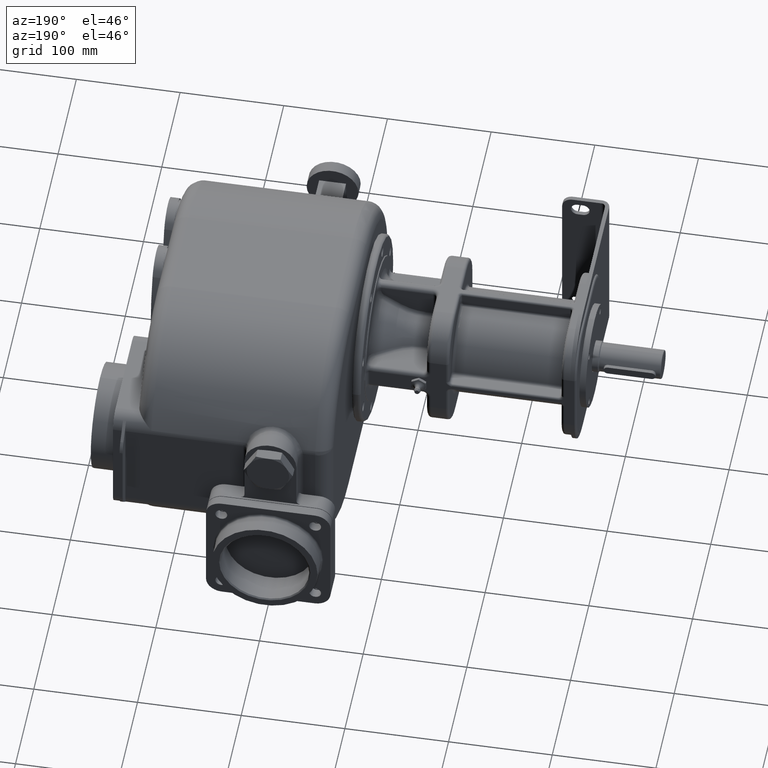
[diagram: clean part render]
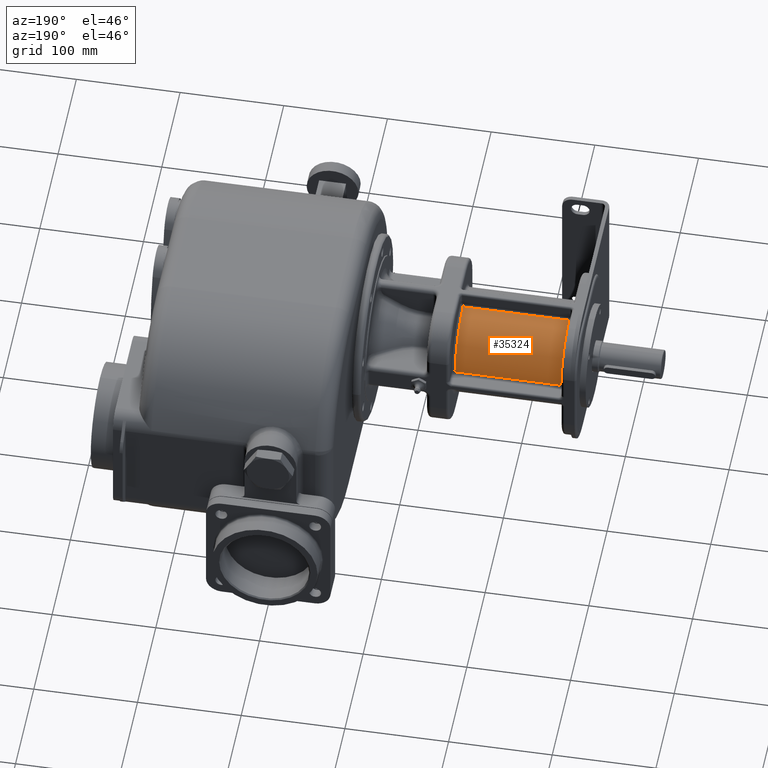
[diagram: same view with one face highlighted and labeled with its STEP entity id]
A machine part, auxiliary view. The second image highlights one B-rep face of the part: STEP entity #35324.
In plain terms, the highlighted cylindrical surface (partial cylindrical patch) has radius 50 mm, axis along (-1, 0, 0).
Its self-contained STEP definition (entity closure, byte-faithful):
#11187=CARTESIAN_POINT('',(-1.48E2,1.2E2,0.E0));
#11188=DIRECTION('',(-1.E0,0.E0,0.E0));
#11189=DIRECTION('',(0.E0,1.057692307692E-1,9.943907028037E-1));
#11190=AXIS2_PLACEMENT_3D('',#11187,#11188,#11189);
#11202=DIRECTION('',(-1.E0,3.724079868013E-13,3.501512805194E-12));
#11203=VECTOR('',#11202,1.02E2);
#11204=CARTESIAN_POINT('',(-1.48E2,1.252884615390E2,4.971953514554E1));
#11205=LINE('',#11204,#11203);
#11206=DIRECTION('',(1.E0,0.E0,0.E0));
#11207=VECTOR('',#11206,1.02E2);
#11208=CARTESIAN_POINT('',(-2.5E2,1.696225518329E2,6.132075471698E0));
#11209=LINE('',#11208,#11207);
#11220=CARTESIAN_POINT('',(-2.5E2,1.252884615391E2,4.971953514590E1));
#11265=CARTESIAN_POINT('',(-2.5E2,1.2E2,0.E0));
#11266=DIRECTION('',(1.E0,0.E0,0.E0));
#11267=DIRECTION('',(0.E0,9.924510366581E-1,1.226415094340E-1));
#11268=AXIS2_PLACEMENT_3D('',#11265,#11266,#11267);
#16450=CARTESIAN_POINT('',(-1.48E2,1.696225518329E2,6.132075471698E0));
#16451=VERTEX_POINT('',#16450);
#16452=CARTESIAN_POINT('',(-2.5E2,1.696225518329E2,6.132075471698E0));
#16453=VERTEX_POINT('',#16452);
#16588=VERTEX_POINT('',#11220);
#16589=CARTESIAN_POINT('',(-1.48E2,1.252884615390E2,4.971953514554E1));
#16590=VERTEX_POINT('',#16589);
#35310=CARTESIAN_POINT('',(-1.231E2,1.2E2,0.E0));
#35311=DIRECTION('',(-1.E0,0.E0,0.E0));
#35312=DIRECTION('',(0.E0,-1.E0,0.E0));
#35313=AXIS2_PLACEMENT_3D('',#35310,#35311,#35312);
#35314=CYLINDRICAL_SURFACE('',#35313,5.E1);
#35316=ORIENTED_EDGE('',*,*,#35315,.T.);
#35318=ORIENTED_EDGE('',*,*,#35317,.F.);
#35320=ORIENTED_EDGE('',*,*,#35319,.T.);
#35321=ORIENTED_EDGE('',*,*,#35302,.F.);
#35322=EDGE_LOOP('',(#35316,#35318,#35320,#35321));
#35323=FACE_OUTER_BOUND('',#35322,.F.);
#35324=ADVANCED_FACE('',(#35323),#35314,.T.);
#11191=CIRCLE('',#11190,5.E1);
#11269=CIRCLE('',#11268,5.E1);
#35302=EDGE_CURVE('',#16590,#16451,#11191,.T.);
#35315=EDGE_CURVE('',#16590,#16588,#11205,.T.);
#35317=EDGE_CURVE('',#16453,#16588,#11269,.T.);
#35319=EDGE_CURVE('',#16453,#16451,#11209,.T.);